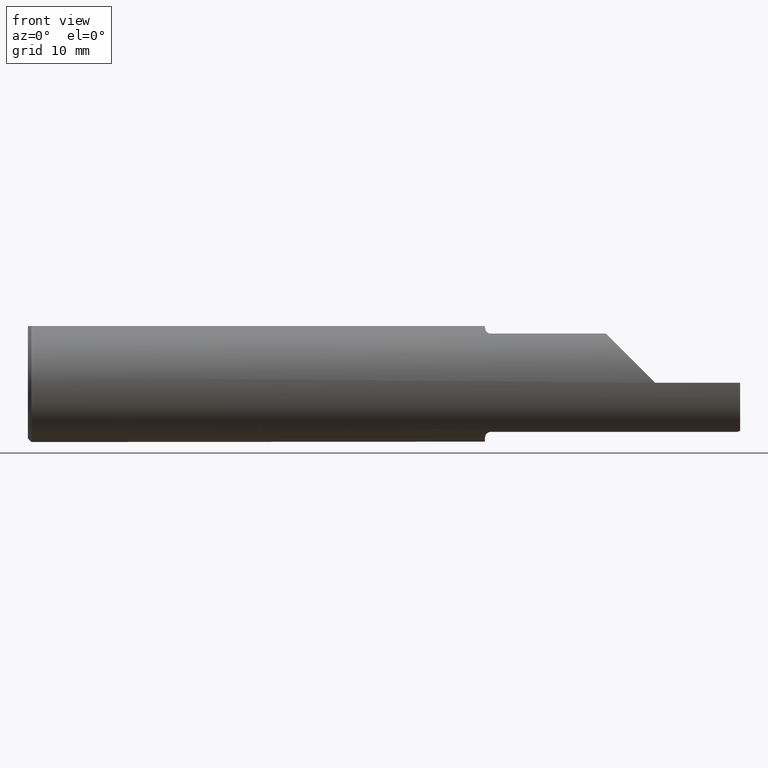
[diagram: clean part render]
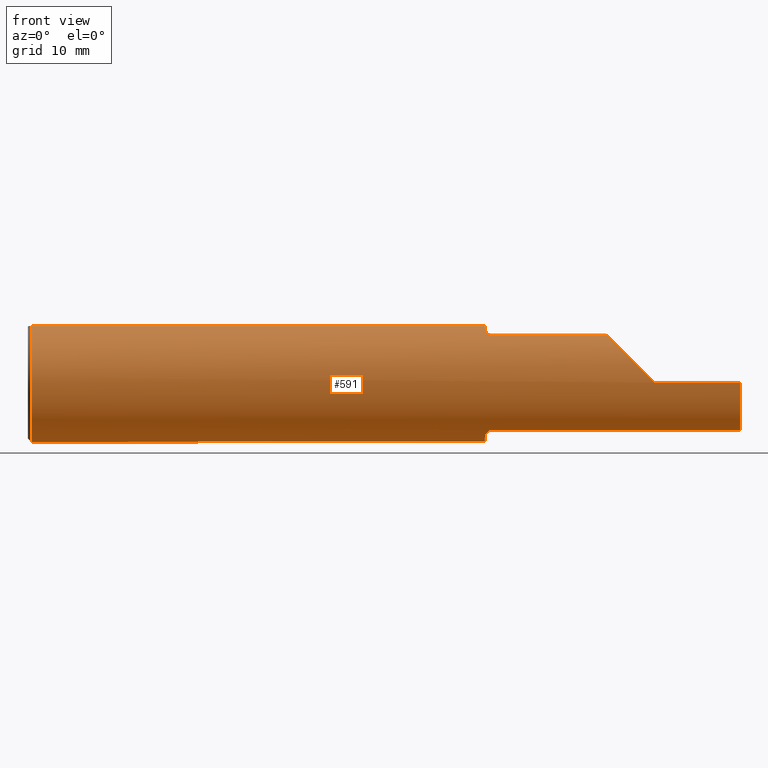
[diagram: same view with one face highlighted and labeled with its STEP entity id]
A machine part, front view. The second image highlights one B-rep face of the part: STEP entity #591.
In plain terms, the highlighted cylindrical surface (partial cylindrical patch) has radius 6.3462 mm, axis along (-1, -0, -0).
Its self-contained STEP definition (entity closure, byte-faithful):
#5 = VERTEX_POINT ( 'NONE', #46 ) ;
#8 = AXIS2_PLACEMENT_3D ( 'NONE', #371, #857, #209 ) ;
#22 = CARTESIAN_POINT ( 'NONE',  ( 1.925056834358316316, -0.09684999999998002151, -0.2303152187763627956 ) ) ;
#25 = CARTESIAN_POINT ( 'NONE',  ( 1.925361372780716840, -0.1075719347965366363, -0.2258065311153257260 ) ) ;
#36 = DIRECTION ( 'NONE',  ( 0.000000000000000000, 0.000000000000000000, -1.000000000000000000 ) ) ;
#37 = VERTEX_POINT ( 'NONE', #773 ) ;
#38 = EDGE_CURVE ( 'NONE', #398, #763, #432, .T. ) ;
#41 = CARTESIAN_POINT ( 'NONE',  ( 1.939875278575877937, -0.1451430425960587578, 0.2033773245914853312 ) ) ;
#46 = CARTESIAN_POINT ( 'NONE',  ( 0.01500000000000188856, 0.000000000000000000, -0.2498499999999999888 ) ) ;
#49 = VERTEX_POINT ( 'NONE', #212 ) ;
#58 = CARTESIAN_POINT ( 'NONE',  ( 1.925362334957246402, -0.1076058103047661113, 0.2257922861036848194 ) ) ;
#59 = DIRECTION ( 'NONE',  ( 0.000000000000000000, 0.000000000000000000, -1.000000000000000000 ) ) ;
#61 = VERTEX_POINT ( 'NONE', #722 ) ;
#62 = CARTESIAN_POINT ( 'NONE',  ( 1.925000000000000266, 0.000000000000000000, 0.000000000000000000 ) ) ;
#65 = VERTEX_POINT ( 'NONE', #786 ) ;
#70 = VERTEX_POINT ( 'NONE', #72 ) ;
#72 = CARTESIAN_POINT ( 'NONE',  ( 1.925000000000000266, 0.07331916529803135518, 0.2388499999999999790 ) ) ;
#76 = CIRCLE ( 'NONE', #315, 0.2498499999999999888 ) ;
#77 = CARTESIAN_POINT ( 'NONE',  ( 1.925056834358316316, -0.09684999999998002151, -0.2303152187763627956 ) ) ;
#78 = EDGE_CURVE ( 'NONE', #664, #742, #821, .T. ) ;
#84 = VECTOR ( 'NONE', #832, 39.37007874015748143 ) ;
#88 = CARTESIAN_POINT ( 'NONE',  ( 1.950000000000000178, -0.1494886164171399245, -0.2001953447552894949 ) ) ;
#111 = CARTESIAN_POINT ( 'NONE',  ( 1.947020367144871145, -0.1494886164171399245, 0.2001953447552894672 ) ) ;
#120 = EDGE_CURVE ( 'NONE', #370, #667, #243, .T. ) ;
#124 = VECTOR ( 'NONE', #706, 39.37007874015748143 ) ;
#129 = ORIENTED_EDGE ( 'NONE', *, *, #545, .F. ) ;
#143 = DIRECTION ( 'NONE',  ( 1.000000000000000000, 0.000000000000000000, 0.000000000000000000 ) ) ;
#145 = CARTESIAN_POINT ( 'NONE',  ( 1.933621117101777198, -0.1369789607150102562, 0.2090142917562188285 ) ) ;
#149 = EDGE_CURVE ( 'NONE', #65, #664, #820, .T. ) ;
#154 = DIRECTION ( 'NONE',  ( 0.000000000000000000, 0.000000000000000000, -1.000000000000000000 ) ) ;
#156 = LINE ( 'NONE', #590, #195 ) ;
#158 = CIRCLE ( 'NONE', #665, 0.2498499999999999888 ) ;
#164 = EDGE_CURVE ( 'NONE', #370, #65, #190, .T. ) ;
#170 = CARTESIAN_POINT ( 'NONE',  ( 1.925056834358316760, -0.09685000000000180964, 0.2303152187763536918 ) ) ;
#172 = EDGE_CURVE ( 'NONE', #667, #37, #487, .T. ) ;
#173 = CARTESIAN_POINT ( 'NONE',  ( 3.000000000000000444, -0.2498499999999999055, -6.123031769111886291E-17 ) ) ;
#188 = EDGE_CURVE ( 'NONE', #701, #5, #609, .T. ) ;
#190 = LINE ( 'NONE', #700, #84 ) ;
#192 = LINE ( 'NONE', #571, #377 ) ;
#195 = VECTOR ( 'NONE', #223, 39.37007874015748143 ) ;
#196 = CARTESIAN_POINT ( 'NONE',  ( 1.925000000000000266, -0.09282883324728960495, 0.2319651487140835522 ) ) ;
#204 = AXIS2_PLACEMENT_3D ( 'NONE', #632, #903, #768 ) ;
#209 = DIRECTION ( 'NONE',  ( 0.000000000000000000, 0.000000000000000000, 1.000000000000000000 ) ) ;
#212 = CARTESIAN_POINT ( 'NONE',  ( 1.925056834358316316, -0.09684999999998002151, -0.2303152187763627956 ) ) ;
#217 = CARTESIAN_POINT ( 'NONE',  ( 1.925056834358316760, -0.09685000000000180964, 0.2303152187763536918 ) ) ;
#222 = AXIS2_PLACEMENT_3D ( 'NONE', #509, #793, #36 ) ;
#223 = DIRECTION ( 'NONE',  ( -1.000000000000000000, -0.000000000000000000, -0.000000000000000000 ) ) ;
#233 = CARTESIAN_POINT ( 'NONE',  ( 1.925000000000000266, -0.09282883324728960495, -0.2319651487140835522 ) ) ;
#243 = CIRCLE ( 'NONE', #222, 0.2498499999999999888 ) ;
#246 = ORIENTED_EDGE ( 'NONE', *, *, #785, .T. ) ;
#288 = FACE_OUTER_BOUND ( 'NONE', #321, .T. ) ;
#289 = CARTESIAN_POINT ( 'NONE',  ( 1.926763007424507457, -0.1178923264691399686, 0.2205715275921999452 ) ) ;
#301 = VERTEX_POINT ( 'NONE', #233 ) ;
#302 = AXIS2_PLACEMENT_3D ( 'NONE', #62, #631, #784 ) ;
#311 = CARTESIAN_POINT ( 'NONE',  ( 1.931527936142123592, -0.1322095316791235264, -0.2120777013314376347 ) ) ;
#315 = AXIS2_PLACEMENT_3D ( 'NONE', #472, #539, #59 ) ;
#321 = EDGE_LOOP ( 'NONE', ( #530, #559, #404, #827, #637, #670, #349, #586, #129, #470, #765, #246, #407, #484, #695, #739 ) ) ;
#331 = CARTESIAN_POINT ( 'NONE',  ( 1.938126455499453504, -0.1431912086441300413, 0.2047622941394795781 ) ) ;
#333 = CARTESIAN_POINT ( 'NONE',  ( 2.392500000000000071, -0.1494886164171399245, -0.2001953447552894949 ) ) ;
#335 = B_SPLINE_CURVE_WITH_KNOTS ( 'NONE', 3,
 ( #217, #440, #655, #726 ),
 .UNSPECIFIED., .F., .F.,
 ( 4, 4 ),
 ( 0.001785983475866874436, 0.001896829427359323760 ),
 .UNSPECIFIED. ) ;
#349 = ORIENTED_EDGE ( 'NONE', *, *, #38, .T. ) ;
#351 = EDGE_CURVE ( 'NONE', #49, #37, #620, .T. ) ;
#369 = CARTESIAN_POINT ( 'NONE',  ( 1.925019000533665592, -0.09551797825495939032, -0.2308753480925707924 ) ) ;
#370 = VERTEX_POINT ( 'NONE', #173 ) ;
#371 = CARTESIAN_POINT ( 'NONE',  ( 3.000000000000000444, 0.000000000000000000, 0.000000000000000000 ) ) ;
#377 = VECTOR ( 'NONE', #490, 39.37007874015748143 ) ;
#393 = CARTESIAN_POINT ( 'NONE',  ( 1.950000000000000178, -0.1494886164171399245, 0.2001953447552894949 ) ) ;
#398 = VERTEX_POINT ( 'NONE', #393 ) ;
#404 = ORIENTED_EDGE ( 'NONE', *, *, #164, .T. ) ;
#407 = ORIENTED_EDGE ( 'NONE', *, *, #892, .T. ) ;
#426 = CARTESIAN_POINT ( 'NONE',  ( 2.560176953520660437, -0.2494150432560469088, 0.08117304647933933082 ) ) ;
#432 = B_SPLINE_CURVE_WITH_KNOTS ( 'NONE', 3,
 ( #612, #111, #691, #41, #331, #145, #438, #289, #58, #717 ),
 .UNSPECIFIED., .F., .F.,
 ( 4, 2, 2, 2, 4 ),
 ( 0.000000000000000000, 0.0002232479344833600363, 0.0004464958689667200727, 0.0008929917379334389527, 0.001785983475866874436 ),
 .UNSPECIFIED. ) ;
#433 = CARTESIAN_POINT ( 'NONE',  ( 2.640000000000000124, -0.2498463527850666721, 0.001349999999999153743 ) ) ;
#437 = EDGE_CURVE ( 'NONE', #301, #70, #905, .T. ) ;
#438 = CARTESIAN_POINT ( 'NONE',  ( 1.931579487302564013, -0.1323357243723022603, 0.2119991103425290235 ) ) ;
#440 = CARTESIAN_POINT ( 'NONE',  ( 1.925018912949717720, -0.09551489467185736437, 0.2308766447720728143 ) ) ;
#445 = CARTESIAN_POINT ( 'NONE',  ( 1.925000000000000266, 0.000000000000000000, 0.000000000000000000 ) ) ;
#460 = CARTESIAN_POINT ( 'NONE',  ( 1.938098364138955754, -0.1431579111149089145, -0.2047855815810830926 ) ) ;
#464 = AXIS2_PLACEMENT_3D ( 'NONE', #478, #839, #690 ) ;
#465 = CARTESIAN_POINT ( 'NONE',  ( 1.944219481832199170, -0.1482797491967531300, -0.2011020871690758494 ) ) ;
#470 = ORIENTED_EDGE ( 'NONE', *, *, #696, .T. ) ;
#472 = CARTESIAN_POINT ( 'NONE',  ( 0.01500000000000188856, 0.000000000000000000, 0.000000000000000000 ) ) ;
#478 = CARTESIAN_POINT ( 'NONE',  ( 2.640000000000000124, 0.000000000000000000, 0.000000000000000000 ) ) ;
#484 = ORIENTED_EDGE ( 'NONE', *, *, #437, .F. ) ;
#487 = LINE ( 'NONE', #333, #780 ) ;
#490 = DIRECTION ( 'NONE',  ( 1.000000000000000000, 0.000000000000000000, 0.000000000000000000 ) ) ;
#505 = VERTEX_POINT ( 'NONE', #196 ) ;
#509 = CARTESIAN_POINT ( 'NONE',  ( 3.000000000000000444, 0.000000000000000000, 0.000000000000000000 ) ) ;
#511 = CARTESIAN_POINT ( 'NONE',  ( 3.000000000000000444, -0.1494886164171398690, -0.2001953447552895227 ) ) ;
#513 = CYLINDRICAL_SURFACE ( 'NONE', #8, 0.2498499999999999888 ) ;
#522 = EDGE_CURVE ( 'NONE', #398, #742, #644, .T. ) ;
#530 = ORIENTED_EDGE ( 'NONE', *, *, #172, .F. ) ;
#539 = DIRECTION ( 'NONE',  ( 1.000000000000000000, -0.000000000000000000, -0.000000000000000000 ) ) ;
#545 = EDGE_CURVE ( 'NONE', #882, #505, #158, .T. ) ;
#559 = ORIENTED_EDGE ( 'NONE', *, *, #120, .F. ) ;
#571 = CARTESIAN_POINT ( 'NONE',  ( 3.000000000000000444, 0.07331916529803135518, 0.2388499999999998957 ) ) ;
#576 = CARTESIAN_POINT ( 'NONE',  ( 2.441154655244710980, -0.1494886164171400911, 0.2001953447552893839 ) ) ;
#582 = CARTESIAN_POINT ( 'NONE',  ( 2.640000000000000124, -0.2498463527850666721, 0.001349999999999153743 ) ) ;
#586 = ORIENTED_EDGE ( 'NONE', *, *, #618, .T. ) ;
#590 = CARTESIAN_POINT ( 'NONE',  ( 3.000000000000000444, -0.07331916529803135518, 0.2388499999999998957 ) ) ;
#591 = ADVANCED_FACE ( 'NONE', ( #288 ), #513, .T. ) ;
#601 = CARTESIAN_POINT ( 'NONE',  ( 1.939804601073712664, -0.1450778299404785754, -0.2034240810360764262 ) ) ;
#609 = CIRCLE ( 'NONE', #204, 0.2498499999999999888 ) ;
#612 = CARTESIAN_POINT ( 'NONE',  ( 1.950000000000000178, -0.1494886164171399245, 0.2001953447552894949 ) ) ;
#618 = EDGE_CURVE ( 'NONE', #763, #505, #335, .T. ) ;
#620 = B_SPLINE_CURVE_WITH_KNOTS ( 'NONE', 3,
 ( #22, #25, #888, #311, #828, #460, #601, #465, #890, #88 ),
 .UNSPECIFIED., .F., .F.,
 ( 4, 2, 2, 2, 4 ),
 ( 0.0001090155944137358965, 0.0009865223614607978014, 0.001425275744984329587, 0.001644652436746094504, 0.001864029128507859422 ),
 .UNSPECIFIED. ) ;
#631 = DIRECTION ( 'NONE',  ( 1.000000000000000000, 0.000000000000000000, 0.000000000000000000 ) ) ;
#632 = CARTESIAN_POINT ( 'NONE',  ( 0.01500000000000188856, 0.000000000000000000, 0.000000000000000000 ) ) ;
#637 = ORIENTED_EDGE ( 'NONE', *, *, #78, .T. ) ;
#644 = LINE ( 'NONE', #852, #124 ) ;
#650 = EDGE_CURVE ( 'NONE', #301, #49, #858, .T. ) ;
#653 = CARTESIAN_POINT ( 'NONE',  ( 0.01500000000000188509, -0.07331916529803116089, 0.2388499999999999790 ) ) ;
#655 = CARTESIAN_POINT ( 'NONE',  ( 1.925000000000000266, -0.09417450869096334609, 0.2314266303976112160 ) ) ;
#661 = CARTESIAN_POINT ( 'NONE',  ( 1.925000000000000266, -0.09282883324728960495, -0.2319651487140835522 ) ) ;
#664 = VERTEX_POINT ( 'NONE', #433 ) ;
#665 = AXIS2_PLACEMENT_3D ( 'NONE', #445, #143, #154 ) ;
#667 = VERTEX_POINT ( 'NONE', #511 ) ;
#670 = ORIENTED_EDGE ( 'NONE', *, *, #522, .F. ) ;
#687 = DIRECTION ( 'NONE',  ( -1.000000000000000000, -0.000000000000000000, -0.000000000000000000 ) ) ;
#690 = DIRECTION ( 'NONE',  ( 0.000000000000000000, 0.000000000000000000, 1.000000000000000000 ) ) ;
#691 = CARTESIAN_POINT ( 'NONE',  ( 1.944274813964109505, -0.1483055201436096204, 0.2010828477691847527 ) ) ;
#695 = ORIENTED_EDGE ( 'NONE', *, *, #650, .T. ) ;
#696 = EDGE_CURVE ( 'NONE', #882, #701, #156, .T. ) ;
#700 = CARTESIAN_POINT ( 'NONE',  ( 3.000000000000000444, -0.2498499999999999610, -6.123031769111886291E-17 ) ) ;
#701 = VERTEX_POINT ( 'NONE', #653 ) ;
#706 = DIRECTION ( 'NONE',  ( 1.000000000000000000, 0.000000000000000000, 0.000000000000000000 ) ) ;
#717 = CARTESIAN_POINT ( 'NONE',  ( 1.925056834358316760, -0.09685000000000180964, 0.2303152187763536918 ) ) ;
#722 = CARTESIAN_POINT ( 'NONE',  ( 0.01500000000000188856, 0.07331916529803116089, 0.2388499999999999790 ) ) ;
#726 = CARTESIAN_POINT ( 'NONE',  ( 1.925000000000000266, -0.09282883324728960495, 0.2319651487140835522 ) ) ;
#739 = ORIENTED_EDGE ( 'NONE', *, *, #351, .T. ) ;
#742 = VERTEX_POINT ( 'NONE', #576 ) ;
#763 = VERTEX_POINT ( 'NONE', #170 ) ;
#765 = ORIENTED_EDGE ( 'NONE', *, *, #188, .T. ) ;
#768 = DIRECTION ( 'NONE',  ( 0.000000000000000000, 0.000000000000000000, -1.000000000000000000 ) ) ;
#773 = CARTESIAN_POINT ( 'NONE',  ( 1.950000000000000178, -0.1494886164171399245, -0.2001953447552894949 ) ) ;
#780 = VECTOR ( 'NONE', #687, 39.37007874015748143 ) ;
#782 = CARTESIAN_POINT ( 'NONE',  ( 1.925000000000000266, -0.07331916529803114702, 0.2388499999999999790 ) ) ;
#784 = DIRECTION ( 'NONE',  ( 0.000000000000000000, 0.000000000000000000, -1.000000000000000000 ) ) ;
#785 = EDGE_CURVE ( 'NONE', #5, #61, #76, .T. ) ;
#786 = CARTESIAN_POINT ( 'NONE',  ( 2.640000000000000124, -0.2498499999999999610, -6.123031769111885058E-17 ) ) ;
#793 = DIRECTION ( 'NONE',  ( 1.000000000000000000, 0.000000000000000000, 0.000000000000000000 ) ) ;
#804 = CARTESIAN_POINT ( 'NONE',  ( 1.925000000000000266, -0.09417762792835078500, -0.2314253821274770972 ) ) ;
#820 = CIRCLE ( 'NONE', #464, 0.2498499999999999888 ) ;
#821 =( BOUNDED_CURVE ( )  B_SPLINE_CURVE ( 3, ( #582, #426, #864, #848 ),
 .UNSPECIFIED., .F., .F. ) 
 B_SPLINE_CURVE_WITH_KNOTS ( ( 4, 4 ),
 ( 4.717792248621494267, 5.641790718733343368 ),
 .UNSPECIFIED. ) 
 CURVE ( )  GEOMETRIC_REPRESENTATION_ITEM ( )  RATIONAL_B_SPLINE_CURVE ( ( 1.000000000000000000, 0.9301087671763463849, 0.9301087671763463849, 1.000000000000000000 ) ) 
 REPRESENTATION_ITEM ( '' )  );
#827 = ORIENTED_EDGE ( 'NONE', *, *, #149, .T. ) ;
#828 = CARTESIAN_POINT ( 'NONE',  ( 1.933603512678597314, -0.1369436784278610930, -0.2090374349053132075 ) ) ;
#832 = DIRECTION ( 'NONE',  ( -1.000000000000000000, -0.000000000000000000, -0.000000000000000000 ) ) ;
#839 = DIRECTION ( 'NONE',  ( -1.000000000000000000, -0.000000000000000000, -0.000000000000000000 ) ) ;
#848 = CARTESIAN_POINT ( 'NONE',  ( 2.441154655244710980, -0.1494886164171400911, 0.2001953447552893839 ) ) ;
#852 = CARTESIAN_POINT ( 'NONE',  ( 2.392500000000000071, -0.1494886164171399245, 0.2001953447552894949 ) ) ;
#857 = DIRECTION ( 'NONE',  ( -1.000000000000000000, -0.000000000000000000, -0.000000000000000000 ) ) ;
#858 = B_SPLINE_CURVE_WITH_KNOTS ( 'NONE', 3,
 ( #661, #804, #369, #77 ),
 .UNSPECIFIED., .F., .F.,
 ( 4, 4 ),
 ( 0.000000000000000000, 0.0001090155944137358965 ),
 .UNSPECIFIED. ) ;
#864 = CARTESIAN_POINT ( 'NONE',  ( 2.488914555052665456, -0.2134487348307804455, 0.1524354449473348527 ) ) ;
#882 = VERTEX_POINT ( 'NONE', #782 ) ;
#888 = CARTESIAN_POINT ( 'NONE',  ( 1.926742824673065124, -0.1177739016850215953, -0.2206342839570611114 ) ) ;
#890 = CARTESIAN_POINT ( 'NONE',  ( 1.947000154949639850, -0.1494886164171400356, -0.2001953447552894672 ) ) ;
#892 = EDGE_CURVE ( 'NONE', #61, #70, #192, .T. ) ;
#903 = DIRECTION ( 'NONE',  ( 1.000000000000000000, -0.000000000000000000, -0.000000000000000000 ) ) ;
#905 = CIRCLE ( 'NONE', #302, 0.2498499999999999888 ) ;